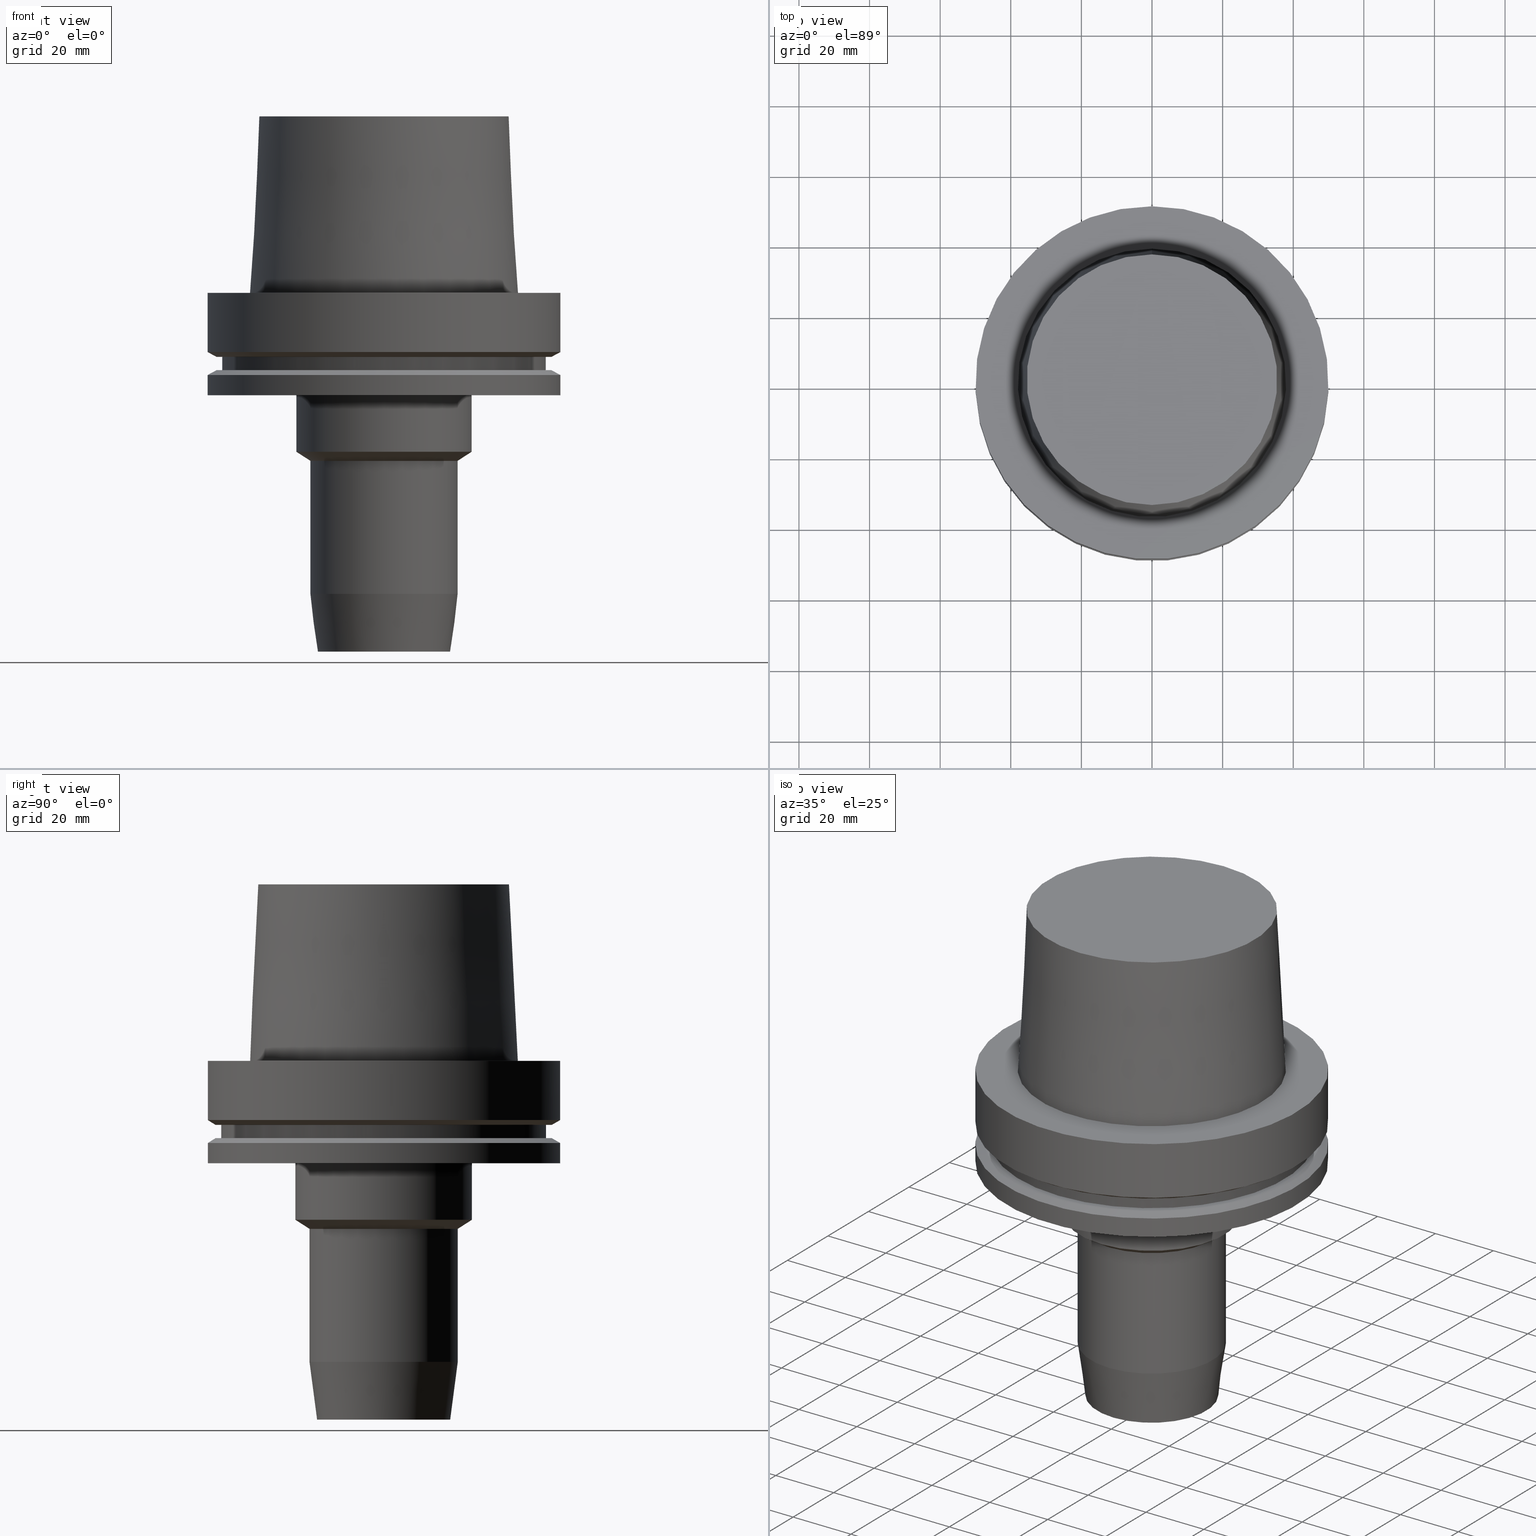
[diagram: canonical four-view strip — front | top / right | iso, engineering-drawing reading convention]
A machine part, canonical four-view strip (front | top / right | iso — engineering-drawing reading convention). The complete STEP part file that produces these views, byte-faithful:
ISO-10303-21;
HEADER;
FILE_DESCRIPTION((''),'1');
FILE_NAME('V:/90_\X2\53D65F9730C730FC30BF\X0\/00_\X2\6DE18DEF30C730FC30BF\X0\/ALL/HSK-BKUS\X2\52A05DE556F3\X0\_201801/HSK-A100-HDC/HSK-A100-HDC.750-4.stp','2018-02-01T05:30:38',(''),(''),'Spatial Interop R21 SP3','Kubotek KeyCreator 2011 V10.0.2 (22737)',' ');
FILE_SCHEMA(('automotive_design'));
ENDSEC;
DATA;
#1=MECHANICAL_DESIGN_GEOMETRIC_PRESENTATION_REPRESENTATION(' ',(#10,#11,#12,#13,#14,#15,#16,#17,#18,#19,#20,#21,#22,#23,#24,#25,#26,#27,#28,#29,#30,#31,#32,#33,#34,#35,#36,#37,#38,#39,#40,#41),#6);
#2=PRODUCT_DEFINITION_CONTEXT('',#42,'design');
#3=APPLICATION_PROTOCOL_DEFINITION('INTERNATIONAL STANDARD','automotive_design',1994,#42);
#4=PRODUCT_CATEGORY_RELATIONSHIP('NONE','NONE',#43,#44);
#5=SHAPE_DEFINITION_REPRESENTATION(#45,#46);
#6= (GEOMETRIC_REPRESENTATION_CONTEXT(3)GLOBAL_UNCERTAINTY_ASSIGNED_CONTEXT((#49))GLOBAL_UNIT_ASSIGNED_CONTEXT((#51,#52,#53))REPRESENTATION_CONTEXT('NONE','WORKSPACE'));
#10=STYLED_ITEM('',(#55,#56),#57);
#11=STYLED_ITEM('',(#58,#59),#60);
#12=STYLED_ITEM('',(#61,#62),#63);
#13=STYLED_ITEM('',(#64,#65),#66);
#14=STYLED_ITEM('',(#67),#68);
#15=STYLED_ITEM('',(#69,#70),#71);
#16=STYLED_ITEM('',(#72,#73),#74);
#17=STYLED_ITEM('',(#75,#76),#77);
#18=STYLED_ITEM('',(#78),#79);
#19=STYLED_ITEM('',(#80,#81),#82);
#20=STYLED_ITEM('',(#83,#84),#85);
#21=STYLED_ITEM('',(#86),#87);
#22=STYLED_ITEM('',(#88),#89);
#23=STYLED_ITEM('',(#90,#91),#92);
#24=STYLED_ITEM('',(#93),#94);
#25=STYLED_ITEM('',(#95),#96);
#26=STYLED_ITEM('',(#97,#98),#99);
#27=STYLED_ITEM('',(#100,#101),#102);
#28=STYLED_ITEM('',(#103),#104);
#29=STYLED_ITEM('',(#105),#106);
#30=STYLED_ITEM('',(#107,#108),#109);
#31=STYLED_ITEM('',(#110),#111);
#32=STYLED_ITEM('',(#112,#113),#114);
#33=STYLED_ITEM('',(#115,#116),#117);
#34=STYLED_ITEM('',(#118),#119);
#35=STYLED_ITEM('',(#120),#121);
#36=STYLED_ITEM('',(#122,#123),#124);
#37=STYLED_ITEM('',(#125),#126);
#38=STYLED_ITEM('',(#127),#128);
#39=STYLED_ITEM('',(#129),#130);
#40=STYLED_ITEM('',(#131),#132);
#41=STYLED_ITEM('',(#133,#134),#135);
#42=APPLICATION_CONTEXT(' ');
#43=PRODUCT_CATEGORY('part','NONE');
#44=PRODUCT_RELATED_PRODUCT_CATEGORY('detail',' ',(#136));
#45=PRODUCT_DEFINITION_SHAPE('NONE','NONE',#137);
#46=ADVANCED_BREP_SHAPE_REPRESENTATION('Unnamed[1]',(#74,#138),#6);
#49=UNCERTAINTY_MEASURE_WITH_UNIT(LENGTH_MEASURE(1.0E-006),#51,'','');
#51= (CONVERSION_BASED_UNIT('MILLIMETRE',#141)LENGTH_UNIT()NAMED_UNIT(#144));
#52= (NAMED_UNIT(#146)PLANE_ANGLE_UNIT()SI_UNIT($,.RADIAN.));
#53= (NAMED_UNIT(#146)SOLID_ANGLE_UNIT()SI_UNIT($,.STERADIAN.));
#55=PRESENTATION_STYLE_ASSIGNMENT((#152));
#56=PRESENTATION_STYLE_ASSIGNMENT((#153));
#57=ADVANCED_FACE('Unnamed[1]',(#154,#155),#156,.T.);
#58=PRESENTATION_STYLE_ASSIGNMENT((#157));
#59=PRESENTATION_STYLE_ASSIGNMENT((#158));
#60=ADVANCED_FACE('Unnamed[1]',(#159,#160),#161,.T.);
#61=PRESENTATION_STYLE_ASSIGNMENT((#162));
#62=PRESENTATION_STYLE_ASSIGNMENT((#163));
#63=ADVANCED_FACE('Unnamed[1]',(#164,#165),#166,.T.);
#64=PRESENTATION_STYLE_ASSIGNMENT((#167));
#65=PRESENTATION_STYLE_ASSIGNMENT((#168));
#66=ADVANCED_FACE('Unnamed[1]',(#169,#170),#171,.T.);
#67=PRESENTATION_STYLE_ASSIGNMENT((#172));
#68=EDGE_CURVE('Unnamed[1]',#173,#173,#174,.T.);
#69=PRESENTATION_STYLE_ASSIGNMENT((#175));
#70=PRESENTATION_STYLE_ASSIGNMENT((#176));
#71=ADVANCED_FACE('Unnamed[1]',(#177,#178),#179,.T.);
#72=PRESENTATION_STYLE_ASSIGNMENT((#180));
#73=PRESENTATION_STYLE_ASSIGNMENT((#181));
#74=MANIFOLD_SOLID_BREP('Unnamed[1]',#182);
#75=PRESENTATION_STYLE_ASSIGNMENT((#183));
#76=PRESENTATION_STYLE_ASSIGNMENT((#184));
#77=ADVANCED_FACE('Unnamed[1]',(#185,#186),#187,.T.);
#78=PRESENTATION_STYLE_ASSIGNMENT((#188));
#79=EDGE_CURVE('Unnamed[1]',#189,#189,#190,.T.);
#80=PRESENTATION_STYLE_ASSIGNMENT((#191));
#81=PRESENTATION_STYLE_ASSIGNMENT((#192));
#82=ADVANCED_FACE('Unnamed[1]',(#193,#194),#195,.T.);
#83=PRESENTATION_STYLE_ASSIGNMENT((#196));
#84=PRESENTATION_STYLE_ASSIGNMENT((#197));
#85=ADVANCED_FACE('Unnamed[1]',(#198,#199),#200,.T.);
#86=PRESENTATION_STYLE_ASSIGNMENT((#201));
#87=EDGE_CURVE('Unnamed[1]',#202,#202,#203,.T.);
#88=PRESENTATION_STYLE_ASSIGNMENT((#204));
#89=EDGE_CURVE('Unnamed[1]',#205,#205,#206,.T.);
#90=PRESENTATION_STYLE_ASSIGNMENT((#207));
#91=PRESENTATION_STYLE_ASSIGNMENT((#208));
#92=ADVANCED_FACE('Unnamed[1]',(#209),#210,.T.);
#93=PRESENTATION_STYLE_ASSIGNMENT((#211));
#94=EDGE_CURVE('Unnamed[1]',#212,#212,#213,.T.);
#95=PRESENTATION_STYLE_ASSIGNMENT((#214));
#96=EDGE_CURVE('Unnamed[1]',#215,#215,#216,.T.);
#97=PRESENTATION_STYLE_ASSIGNMENT((#217));
#98=PRESENTATION_STYLE_ASSIGNMENT((#218));
#99=ADVANCED_FACE('Unnamed[1]',(#219,#220),#221,.T.);
#100=PRESENTATION_STYLE_ASSIGNMENT((#222));
#101=PRESENTATION_STYLE_ASSIGNMENT((#223));
#102=ADVANCED_FACE('Unnamed[1]',(#224,#225),#226,.T.);
#103=PRESENTATION_STYLE_ASSIGNMENT((#227));
#104=EDGE_CURVE('Unnamed[1]',#228,#228,#229,.T.);
#105=PRESENTATION_STYLE_ASSIGNMENT((#230));
#106=EDGE_CURVE('Unnamed[1]',#231,#231,#232,.T.);
#107=PRESENTATION_STYLE_ASSIGNMENT((#233));
#108=PRESENTATION_STYLE_ASSIGNMENT((#234));
#109=ADVANCED_FACE('Unnamed[1]',(#235,#236),#237,.T.);
#110=PRESENTATION_STYLE_ASSIGNMENT((#238));
#111=EDGE_CURVE('Unnamed[1]',#239,#239,#240,.T.);
#112=PRESENTATION_STYLE_ASSIGNMENT((#241));
#113=PRESENTATION_STYLE_ASSIGNMENT((#242));
#114=ADVANCED_FACE('Unnamed[1]',(#243,#244),#245,.T.);
#115=PRESENTATION_STYLE_ASSIGNMENT((#246));
#116=PRESENTATION_STYLE_ASSIGNMENT((#247));
#117=ADVANCED_FACE('Unnamed[1]',(#248,#249),#250,.T.);
#118=PRESENTATION_STYLE_ASSIGNMENT((#251));
#119=EDGE_CURVE('Unnamed[1]',#252,#252,#253,.T.);
#120=PRESENTATION_STYLE_ASSIGNMENT((#254));
#121=EDGE_CURVE('Unnamed[1]',#255,#255,#256,.T.);
#122=PRESENTATION_STYLE_ASSIGNMENT((#257));
#123=PRESENTATION_STYLE_ASSIGNMENT((#258));
#124=ADVANCED_FACE('Unnamed[1]',(#259),#260,.T.);
#125=PRESENTATION_STYLE_ASSIGNMENT((#261));
#126=EDGE_CURVE('Unnamed[1]',#262,#262,#263,.T.);
#127=PRESENTATION_STYLE_ASSIGNMENT((#264));
#128=EDGE_CURVE('Unnamed[1]',#265,#265,#266,.T.);
#129=PRESENTATION_STYLE_ASSIGNMENT((#267));
#130=EDGE_CURVE('Unnamed[1]',#268,#268,#269,.T.);
#131=PRESENTATION_STYLE_ASSIGNMENT((#270));
#132=EDGE_CURVE('Unnamed[1]',#271,#271,#272,.T.);
#133=PRESENTATION_STYLE_ASSIGNMENT((#273));
#134=PRESENTATION_STYLE_ASSIGNMENT((#274));
#135=ADVANCED_FACE('Unnamed[1]',(#275,#276),#277,.T.);
#136=PRODUCT('Unnamed[1]','Unnamed[1]','PART-Unnamed[1]-DESC',(#278));
#137=PRODUCT_DEFINITION('NONE','NONE',#279,#2);
#138=AXIS2_PLACEMENT_3D('',#280,#281,#282);
#141=LENGTH_MEASURE_WITH_UNIT(LENGTH_MEASURE(1.0),#283);
#144=DIMENSIONAL_EXPONENTS(1.0,0.0,0.0,0.0,0.0,0.0,0.0);
#146=DIMENSIONAL_EXPONENTS(0.0,0.0,0.0,0.0,0.0,0.0,0.0);
#152=SURFACE_STYLE_USAGE(.BOTH.,#284);
#153=CURVE_STYLE('',#285,POSITIVE_LENGTH_MEASURE(1000.0),#286);
#154=FACE_BOUND('',#287,.T.);
#155=FACE_BOUND('',#288,.T.);
#156=CONICAL_SURFACE('',#289,36.7500000007484,0.0499583956894843);
#157=SURFACE_STYLE_USAGE(.BOTH.,#290);
#158=CURVE_STYLE('',#291,POSITIVE_LENGTH_MEASURE(1000.0),#292);
#159=FACE_BOUND('',#293,.T.);
#160=FACE_BOUND('',#294,.T.);
#161=CONICAL_SURFACE('',#295,48.81129763,1.04719755328238);
#162=SURFACE_STYLE_USAGE(.BOTH.,#296);
#163=CURVE_STYLE('',#297,POSITIVE_LENGTH_MEASURE(1000.0),#298);
#164=FACE_BOUND('',#299,.T.);
#165=FACE_OUTER_BOUND('',#300,.T.);
#166=PLANE('',#301);
#167=SURFACE_STYLE_USAGE(.BOTH.,#302);
#168=CURVE_STYLE('',#303,POSITIVE_LENGTH_MEASURE(1000.0),#304);
#169=FACE_BOUND('',#305,.T.);
#170=FACE_OUTER_BOUND('',#306,.T.);
#171=PLANE('',#307);
#172=CURVE_STYLE('',#308,POSITIVE_LENGTH_MEASURE(1000.0),#309);
#173=VERTEX_POINT('',#310);
#174=CIRCLE('',#311,50.0);
#175=SURFACE_STYLE_USAGE(.BOTH.,#312);
#176=CURVE_STYLE('',#313,POSITIVE_LENGTH_MEASURE(1000.0),#314);
#177=FACE_OUTER_BOUND('',#315,.T.);
#178=FACE_BOUND('',#316,.T.);
#179=PLANE('',#317);
#180=SURFACE_STYLE_USAGE(.BOTH.,#318);
#181=CURVE_STYLE('',#319,POSITIVE_LENGTH_MEASURE(1000.0),#320);
#182=CLOSED_SHELL('',(#124,#57,#109,#82,#60,#63,#102,#71,#114,#85,#66,#99,#135,#77,#117,#92));
#183=SURFACE_STYLE_USAGE(.BOTH.,#321);
#184=CURVE_STYLE('',#322,POSITIVE_LENGTH_MEASURE(1000.0),#323);
#185=FACE_BOUND('',#324,.T.);
#186=FACE_BOUND('',#325,.T.);
#187=CYLINDRICAL_SURFACE('',#326,20.9999999999996);
#188=CURVE_STYLE('',#327,POSITIVE_LENGTH_MEASURE(1000.0),#328);
#189=VERTEX_POINT('',#329);
#190=CIRCLE('',#330,50.0);
#191=SURFACE_STYLE_USAGE(.BOTH.,#331);
#192=CURVE_STYLE('',#332,POSITIVE_LENGTH_MEASURE(1000.0),#333);
#193=FACE_BOUND('',#334,.T.);
#194=FACE_BOUND('',#335,.T.);
#195=CYLINDRICAL_SURFACE('',#336,50.0);
#196=SURFACE_STYLE_USAGE(.BOTH.,#337);
#197=CURVE_STYLE('',#338,POSITIVE_LENGTH_MEASURE(1000.0),#339);
#198=FACE_BOUND('',#340,.T.);
#199=FACE_BOUND('',#341,.T.);
#200=CYLINDRICAL_SURFACE('',#342,50.0);
#201=CURVE_STYLE('',#343,POSITIVE_LENGTH_MEASURE(1000.0),#344);
#202=VERTEX_POINT('',#345);
#203=CIRCLE('',#346,18.8468234019571);
#204=CURVE_STYLE('',#347,POSITIVE_LENGTH_MEASURE(1000.0),#348);
#205=VERTEX_POINT('',#349);
#206=CIRCLE('',#350,21.0000000000001);
#207=SURFACE_STYLE_USAGE(.BOTH.,#351);
#208=CURVE_STYLE('',#352,POSITIVE_LENGTH_MEASURE(1000.0),#353);
#209=FACE_OUTER_BOUND('',#354,.T.);
#210=PLANE('',#355);
#211=CURVE_STYLE('',#356,POSITIVE_LENGTH_MEASURE(1000.0),#357);
#212=VERTEX_POINT('',#358);
#213=CIRCLE('',#359,46.0);
#214=CURVE_STYLE('',#360,POSITIVE_LENGTH_MEASURE(1000.0),#361);
#215=VERTEX_POINT('',#362);
#216=CIRCLE('',#363,35.5000000015618);
#217=SURFACE_STYLE_USAGE(.BOTH.,#364);
#218=CURVE_STYLE('',#365,POSITIVE_LENGTH_MEASURE(1000.0),#366);
#219=FACE_BOUND('',#367,.T.);
#220=FACE_BOUND('',#368,.T.);
#221=CYLINDRICAL_SURFACE('',#369,25.0000000000002);
#222=SURFACE_STYLE_USAGE(.BOTH.,#370);
#223=CURVE_STYLE('',#371,POSITIVE_LENGTH_MEASURE(1000.0),#372);
#224=FACE_BOUND('',#373,.T.);
#225=FACE_BOUND('',#374,.T.);
#226=CYLINDRICAL_SURFACE('',#375,46.0);
#227=CURVE_STYLE('',#376,POSITIVE_LENGTH_MEASURE(1000.0),#377);
#228=VERTEX_POINT('',#378);
#229=CIRCLE('',#379,46.0);
#230=CURVE_STYLE('',#380,POSITIVE_LENGTH_MEASURE(1000.0),#381);
#231=VERTEX_POINT('',#382);
#232=CIRCLE('',#383,50.0);
#233=SURFACE_STYLE_USAGE(.BOTH.,#384);
#234=CURVE_STYLE('',#385,POSITIVE_LENGTH_MEASURE(1000.0),#386);
#235=FACE_OUTER_BOUND('',#387,.T.);
#236=FACE_BOUND('',#388,.T.);
#237=PLANE('',#389);
#238=CURVE_STYLE('',#390,POSITIVE_LENGTH_MEASURE(1000.0),#391);
#239=VERTEX_POINT('',#392);
#240=CIRCLE('',#393,25.0000000000002);
#241=SURFACE_STYLE_USAGE(.BOTH.,#394);
#242=CURVE_STYLE('',#395,POSITIVE_LENGTH_MEASURE(1000.0),#396);
#243=FACE_BOUND('',#397,.T.);
#244=FACE_BOUND('',#398,.T.);
#245=CONICAL_SURFACE('',#399,48.81129763,1.04719755328238);
#246=SURFACE_STYLE_USAGE(.BOTH.,#400);
#247=CURVE_STYLE('',#401,POSITIVE_LENGTH_MEASURE(1000.0),#402);
#248=FACE_BOUND('',#403,.T.);
#249=FACE_BOUND('',#404,.T.);
#250=CONICAL_SURFACE('',#405,19.9234117009781,0.13089969389958);
#251=CURVE_STYLE('',#406,POSITIVE_LENGTH_MEASURE(1000.0),#407);
#252=VERTEX_POINT('',#408);
#253=CIRCLE('',#409,47.62259526);
#254=CURVE_STYLE('',#410,POSITIVE_LENGTH_MEASURE(1000.0),#411);
#255=VERTEX_POINT('',#412);
#256=CIRCLE('',#413,50.0);
#257=SURFACE_STYLE_USAGE(.BOTH.,#414);
#258=CURVE_STYLE('',#415,POSITIVE_LENGTH_MEASURE(1000.0),#416);
#259=FACE_OUTER_BOUND('',#417,.T.);
#260=PLANE('',#418);
#261=CURVE_STYLE('',#419,POSITIVE_LENGTH_MEASURE(1000.0),#420);
#262=VERTEX_POINT('',#421);
#263=CIRCLE('',#422,37.9999999999349);
#264=CURVE_STYLE('',#423,POSITIVE_LENGTH_MEASURE(1000.0),#424);
#265=VERTEX_POINT('',#425);
#266=CIRCLE('',#426,20.9999999999991);
#267=CURVE_STYLE('',#427,POSITIVE_LENGTH_MEASURE(1000.0),#428);
#268=VERTEX_POINT('',#429);
#269=CIRCLE('',#430,47.62259526);
#270=CURVE_STYLE('',#431,POSITIVE_LENGTH_MEASURE(1000.0),#432);
#271=VERTEX_POINT('',#433);
#272=CIRCLE('',#434,25.0000000000002);
#273=SURFACE_STYLE_USAGE(.BOTH.,#435);
#274=CURVE_STYLE('',#436,POSITIVE_LENGTH_MEASURE(1000.0),#437);
#275=FACE_BOUND('',#438,.T.);
#276=FACE_BOUND('',#439,.T.);
#277=CONICAL_SURFACE('',#440,23.0000000000001,1.00120778468584);
#278=PRODUCT_CONTEXT('',#42,'mechanical');
#279=PRODUCT_DEFINITION_FORMATION_WITH_SPECIFIED_SOURCE(' ','NONE',#136,.NOT_KNOWN.);
#280=CARTESIAN_POINT('',(0.0,0.0,0.0));
#281=DIRECTION('',(0.0,0.0,1.0));
#282=DIRECTION('',(1.0,0.0,0.0));
#283= (NAMED_UNIT(#144)LENGTH_UNIT()SI_UNIT(.MILLI.,.METRE.));
#284=SURFACE_SIDE_STYLE('',(#442));
#285=DRAUGHTING_PRE_DEFINED_CURVE_FONT('continuous');
#286=COLOUR_RGB('',0.0,1.0,0.0);
#287=EDGE_LOOP('',(#443));
#288=EDGE_LOOP('',(#444));
#289=AXIS2_PLACEMENT_3D('',#445,#446,#447);
#290=SURFACE_SIDE_STYLE('',(#448));
#291=DRAUGHTING_PRE_DEFINED_CURVE_FONT('continuous');
#292=COLOUR_RGB('',0.0,1.0,0.0);
#293=EDGE_LOOP('',(#449));
#294=EDGE_LOOP('',(#450));
#295=AXIS2_PLACEMENT_3D('',#451,#452,#453);
#296=SURFACE_SIDE_STYLE('',(#454));
#297=DRAUGHTING_PRE_DEFINED_CURVE_FONT('continuous');
#298=COLOUR_RGB('',0.0,1.0,0.0);
#299=EDGE_LOOP('',(#455));
#300=EDGE_LOOP('',(#456));
#301=AXIS2_PLACEMENT_3D('',#457,#458,#459);
#302=SURFACE_SIDE_STYLE('',(#460));
#303=DRAUGHTING_PRE_DEFINED_CURVE_FONT('continuous');
#304=COLOUR_RGB('',0.0,1.0,0.0);
#305=EDGE_LOOP('',(#461));
#306=EDGE_LOOP('',(#462));
#307=AXIS2_PLACEMENT_3D('',#463,#464,#465);
#308=DRAUGHTING_PRE_DEFINED_CURVE_FONT('continuous');
#309=COLOUR_RGB('',0.0,1.0,0.0);
#310=CARTESIAN_POINT('',(-1.81547968506605E-031,50.0,-9.76766004263236E-016));
#311=AXIS2_PLACEMENT_3D('',#466,#467,#468);
#312=SURFACE_SIDE_STYLE('',(#469));
#313=DRAUGHTING_PRE_DEFINED_CURVE_FONT('continuous');
#314=COLOUR_RGB('',0.0,1.0,0.0);
#315=EDGE_LOOP('',(#470));
#316=EDGE_LOOP('',(#471));
#317=AXIS2_PLACEMENT_3D('',#472,#473,#474);
#318=SURFACE_SIDE_STYLE('',(#475));
#319=DRAUGHTING_PRE_DEFINED_CURVE_FONT('continuous');
#320=COLOUR_RGB('',0.0,1.0,0.0);
#321=SURFACE_SIDE_STYLE('',(#476));
#322=DRAUGHTING_PRE_DEFINED_CURVE_FONT('continuous');
#323=COLOUR_RGB('',0.0,1.0,0.0);
#324=EDGE_LOOP('',(#477));
#325=EDGE_LOOP('',(#478));
#326=AXIS2_PLACEMENT_3D('',#479,#480,#481);
#327=DRAUGHTING_PRE_DEFINED_CURVE_FONT('continuous');
#328=COLOUR_RGB('',0.0,1.0,0.0);
#329=CARTESIAN_POINT('',(1.42350465615161E-015,50.0,-23.24759526));
#330=AXIS2_PLACEMENT_3D('',#482,#483,#484);
#331=SURFACE_SIDE_STYLE('',(#485));
#332=DRAUGHTING_PRE_DEFINED_CURVE_FONT('continuous');
#333=COLOUR_RGB('',0.0,1.0,0.0);
#334=EDGE_LOOP('',(#486));
#335=EDGE_LOOP('',(#487));
#336=AXIS2_PLACEMENT_3D('',#488,#489,#490);
#337=SURFACE_SIDE_STYLE('',(#491));
#338=DRAUGHTING_PRE_DEFINED_CURVE_FONT('continuous');
#339=COLOUR_RGB('',0.0,1.0,0.0);
#340=EDGE_LOOP('',(#492));
#341=EDGE_LOOP('',(#493));
#342=AXIS2_PLACEMENT_3D('',#494,#495,#496);
#343=DRAUGHTING_PRE_DEFINED_CURVE_FONT('continuous');
#344=COLOUR_RGB('',0.0,1.0,0.0);
#345=CARTESIAN_POINT('',(6.22120573966855E-015,18.8468234019571,-101.6));
#346=AXIS2_PLACEMENT_3D('',#497,#498,#499);
#347=DRAUGHTING_PRE_DEFINED_CURVE_FONT('continuous');
#348=COLOUR_RGB('',0.0,1.0,0.0);
#349=CARTESIAN_POINT('',(2.91230517073421E-015,21.0000000000001,-47.5615528128088));
#350=AXIS2_PLACEMENT_3D('',#500,#501,#502);
#351=SURFACE_SIDE_STYLE('',(#503));
#352=DRAUGHTING_PRE_DEFINED_CURVE_FONT('continuous');
#353=COLOUR_RGB('',0.0,1.0,0.0);
#354=EDGE_LOOP('',(#504));
#355=AXIS2_PLACEMENT_3D('',#505,#506,#507);
#356=DRAUGHTING_PRE_DEFINED_CURVE_FONT('continuous');
#357=COLOUR_RGB('',0.0,1.0,0.0);
#358=CARTESIAN_POINT('',(1.10983616172729E-015,46.0,-18.125));
#359=AXIS2_PLACEMENT_3D('',#508,#509,#510);
#360=DRAUGHTING_PRE_DEFINED_CURVE_FONT('continuous');
#361=COLOUR_RGB('',0.0,1.0,0.0);
#362=CARTESIAN_POINT('',(-3.06161699786838E-015,35.5000000015618,50.0));
#363=AXIS2_PLACEMENT_3D('',#511,#512,#513);
#364=SURFACE_SIDE_STYLE('',(#514));
#365=DRAUGHTING_PRE_DEFINED_CURVE_FONT('continuous');
#366=COLOUR_RGB('',0.0,1.0,0.0);
#367=EDGE_LOOP('',(#515));
#368=EDGE_LOOP('',(#516));
#369=AXIS2_PLACEMENT_3D('',#517,#518,#519);
#370=SURFACE_SIDE_STYLE('',(#520));
#371=DRAUGHTING_PRE_DEFINED_CURVE_FONT('continuous');
#372=COLOUR_RGB('',0.0,1.0,0.0);
#373=EDGE_LOOP('',(#521));
#374=EDGE_LOOP('',(#522));
#375=AXIS2_PLACEMENT_3D('',#523,#524,#525);
#376=DRAUGHTING_PRE_DEFINED_CURVE_FONT('continuous');
#377=COLOUR_RGB('',0.0,1.0,0.0);
#378=CARTESIAN_POINT('',(1.33945743656742E-015,46.0,-21.875));
#379=AXIS2_PLACEMENT_3D('',#526,#527,#528);
#380=DRAUGHTING_PRE_DEFINED_CURVE_FONT('continuous');
#381=COLOUR_RGB('',0.0,1.0,0.0);
#382=CARTESIAN_POINT('',(1.0257889421431E-015,50.0,-16.75240474));
#383=AXIS2_PLACEMENT_3D('',#529,#530,#531);
#384=SURFACE_SIDE_STYLE('',(#532));
#385=DRAUGHTING_PRE_DEFINED_CURVE_FONT('continuous');
#386=COLOUR_RGB('',0.0,1.0,0.0);
#387=EDGE_LOOP('',(#533));
#388=EDGE_LOOP('',(#534));
#389=AXIS2_PLACEMENT_3D('',#535,#536,#537);
#390=DRAUGHTING_PRE_DEFINED_CURVE_FONT('continuous');
#391=COLOUR_RGB('',0.0,1.0,0.0);
#392=CARTESIAN_POINT('',(2.75545529808154E-015,25.0000000000002,-45.0));
#393=AXIS2_PLACEMENT_3D('',#538,#539,#540);
#394=SURFACE_SIDE_STYLE('',(#541));
#395=DRAUGHTING_PRE_DEFINED_CURVE_FONT('continuous');
#396=COLOUR_RGB('',0.0,1.0,0.0);
#397=EDGE_LOOP('',(#542));
#398=EDGE_LOOP('',(#543));
#399=AXIS2_PLACEMENT_3D('',#544,#545,#546);
#400=SURFACE_SIDE_STYLE('',(#547));
#401=DRAUGHTING_PRE_DEFINED_CURVE_FONT('continuous');
#402=COLOUR_RGB('',0.0,1.0,0.0);
#403=EDGE_LOOP('',(#548));
#404=EDGE_LOOP('',(#549));
#405=AXIS2_PLACEMENT_3D('',#550,#551,#552);
#406=DRAUGHTING_PRE_DEFINED_CURVE_FONT('continuous');
#407=COLOUR_RGB('',0.0,1.0,0.0);
#408=CARTESIAN_POINT('',(1.33945743656742E-015,47.62259526,-21.875));
#409=AXIS2_PLACEMENT_3D('',#553,#554,#555);
#410=DRAUGHTING_PRE_DEFINED_CURVE_FONT('continuous');
#411=COLOUR_RGB('',0.0,1.0,0.0);
#412=CARTESIAN_POINT('',(1.77573785876366E-015,50.0,-29.0));
#413=AXIS2_PLACEMENT_3D('',#556,#557,#558);
#414=SURFACE_SIDE_STYLE('',(#559));
#415=DRAUGHTING_PRE_DEFINED_CURVE_FONT('continuous');
#416=COLOUR_RGB('',0.0,1.0,0.0);
#417=EDGE_LOOP('',(#560));
#418=AXIS2_PLACEMENT_3D('',#561,#562,#563);
#419=DRAUGHTING_PRE_DEFINED_CURVE_FONT('continuous');
#420=COLOUR_RGB('',0.0,1.0,0.0);
#421=CARTESIAN_POINT('',(-3.3636548776863E-032,37.9999999999349,-2.44634216324803E-015));
#422=AXIS2_PLACEMENT_3D('',#564,#565,#566);
#423=DRAUGHTING_PRE_DEFINED_CURVE_FONT('continuous');
#424=COLOUR_RGB('',0.0,1.0,0.0);
#425=CARTESIAN_POINT('',(5.21975081966579E-015,20.9999999999991,-85.2449999999997));
#426=AXIS2_PLACEMENT_3D('',#567,#568,#569);
#427=DRAUGHTING_PRE_DEFINED_CURVE_FONT('continuous');
#428=COLOUR_RGB('',0.0,1.0,0.0);
#429=CARTESIAN_POINT('',(1.10983616172729E-015,47.62259526,-18.125));
#430=AXIS2_PLACEMENT_3D('',#570,#571,#572);
#431=DRAUGHTING_PRE_DEFINED_CURVE_FONT('continuous');
#432=COLOUR_RGB('',0.0,1.0,0.0);
#433=CARTESIAN_POINT('',(1.77573785876366E-015,25.0000000000002,-29.0));
#434=AXIS2_PLACEMENT_3D('',#573,#574,#575);
#435=SURFACE_SIDE_STYLE('',(#576));
#436=DRAUGHTING_PRE_DEFINED_CURVE_FONT('continuous');
#437=COLOUR_RGB('',0.0,1.0,0.0);
#438=EDGE_LOOP('',(#577));
#439=EDGE_LOOP('',(#578));
#440=AXIS2_PLACEMENT_3D('',#579,#580,#581);
#442=SURFACE_STYLE_FILL_AREA(#582);
#443=ORIENTED_EDGE('',*,*,#126,.F.);
#444=ORIENTED_EDGE('',*,*,#96,.T.);
#445=CARTESIAN_POINT('',(-1.53080849893419E-015,-3.06161699786838E-015,25.0));
#446=DIRECTION('',(6.12323399573676E-017,1.22464679914735E-016,-1.0));
#447=DIRECTION('',(-1.23259516440783E-032,1.0,1.22464679914735E-016));
#448=SURFACE_STYLE_FILL_AREA(#583);
#449=ORIENTED_EDGE('',*,*,#130,.F.);
#450=ORIENTED_EDGE('',*,*,#106,.T.);
#451=CARTESIAN_POINT('',(1.06781255193519E-015,2.13562510387038E-015,-17.43870237));
#452=DIRECTION('',(-6.12323399573677E-017,-1.22464679914735E-016,1.0));
#453=DIRECTION('',(-1.23259516440783E-032,1.0,1.22464679914735E-016));
#454=SURFACE_STYLE_FILL_AREA(#584);
#455=ORIENTED_EDGE('',*,*,#94,.F.);
#456=ORIENTED_EDGE('',*,*,#130,.T.);
#457=CARTESIAN_POINT('',(1.10983616172729E-015,46.81129763,-18.125));
#458=DIRECTION('',(6.12323399573677E-017,1.22464679914735E-016,-1.0));
#459=DIRECTION('',(-1.23259516440783E-032,1.0,1.22464679914735E-016));
#460=SURFACE_STYLE_FILL_AREA(#585);
#461=ORIENTED_EDGE('',*,*,#132,.F.);
#462=ORIENTED_EDGE('',*,*,#121,.T.);
#463=CARTESIAN_POINT('',(1.77573785876366E-015,37.5000000000001,-29.0));
#464=DIRECTION('',(6.12323399573677E-017,1.22464679914735E-016,-1.0));
#465=DIRECTION('',(-1.23259516440783E-032,1.0,1.22464679914735E-016));
#466=CARTESIAN_POINT('',(0.0,0.0,0.0));
#467=DIRECTION('',(6.12323399573677E-017,1.22464679914735E-016,-1.0));
#468=DIRECTION('',(-1.23259516440783E-032,1.0,1.22464679914735E-016));
#469=SURFACE_STYLE_FILL_AREA(#586);
#470=ORIENTED_EDGE('',*,*,#119,.F.);
#471=ORIENTED_EDGE('',*,*,#104,.T.);
#472=CARTESIAN_POINT('',(1.33945743656742E-015,46.81129763,-21.875));
#473=DIRECTION('',(-6.12323399573677E-017,-1.22464679914735E-016,1.0));
#474=DIRECTION('',(1.23259516440783E-032,-1.0,-1.22464679914735E-016));
#475=SURFACE_STYLE_FILL_AREA(#587);
#476=SURFACE_STYLE_FILL_AREA(#588);
#477=ORIENTED_EDGE('',*,*,#128,.F.);
#478=ORIENTED_EDGE('',*,*,#89,.T.);
#479=CARTESIAN_POINT('',(4.0660279952E-015,8.13205599039999E-015,-66.4032764064043));
#480=DIRECTION('',(6.12323399573677E-017,1.22464679914735E-016,-1.0));
#481=DIRECTION('',(-1.23259516440783E-032,1.0,1.22464679914735E-016));
#482=CARTESIAN_POINT('',(1.42350465615161E-015,2.84700931230322E-015,-23.24759526));
#483=DIRECTION('',(6.12323399573677E-017,1.22464679914735E-016,-1.0));
#484=DIRECTION('',(-1.23259516440783E-032,1.0,1.22464679914735E-016));
#485=SURFACE_STYLE_FILL_AREA(#589);
#486=ORIENTED_EDGE('',*,*,#106,.F.);
#487=ORIENTED_EDGE('',*,*,#68,.T.);
#488=CARTESIAN_POINT('',(5.12894471071548E-016,1.0257889421431E-015,-8.37620236999999));
#489=DIRECTION('',(6.12323399573677E-017,1.22464679914735E-016,-1.0));
#490=DIRECTION('',(-1.23259516440783E-032,1.0,1.22464679914735E-016));
#491=SURFACE_STYLE_FILL_AREA(#590);
#492=ORIENTED_EDGE('',*,*,#121,.F.);
#493=ORIENTED_EDGE('',*,*,#79,.T.);
#494=CARTESIAN_POINT('',(1.59962125745764E-015,3.19924251491527E-015,-26.12379763));
#495=DIRECTION('',(6.12323399573677E-017,1.22464679914735E-016,-1.0));
#496=DIRECTION('',(-1.23259516440783E-032,1.0,1.22464679914735E-016));
#497=CARTESIAN_POINT('',(6.22120573966855E-015,1.24424114793371E-014,-101.6));
#498=DIRECTION('',(6.12323399573677E-017,1.22464679914735E-016,-1.0));
#499=DIRECTION('',(-1.23259516440783E-032,1.0,1.22464679914735E-016));
#500=CARTESIAN_POINT('',(2.91230517073421E-015,5.82461034146841E-015,-47.5615528128088));
#501=DIRECTION('',(6.12323399573677E-017,1.22464679914735E-016,-1.0));
#502=DIRECTION('',(-1.23259516440783E-032,1.0,1.22464679914735E-016));
#503=SURFACE_STYLE_FILL_AREA(#591);
#504=ORIENTED_EDGE('',*,*,#87,.T.);
#505=CARTESIAN_POINT('',(6.22120573966855E-015,9.42341170097856,-101.6));
#506=DIRECTION('',(6.12323399573677E-017,1.22464679914735E-016,-1.0));
#507=DIRECTION('',(-1.23259516440783E-032,1.0,1.22464679914735E-016));
#508=CARTESIAN_POINT('',(1.10983616172729E-015,2.21967232345458E-015,-18.125));
#509=DIRECTION('',(6.12323399573677E-017,1.22464679914735E-016,-1.0));
#510=DIRECTION('',(-1.23259516440783E-032,1.0,1.22464679914735E-016));
#511=CARTESIAN_POINT('',(-3.06161699786838E-015,-6.12323399573676E-015,50.0));
#512=DIRECTION('',(6.12323399573677E-017,1.22464679914735E-016,-1.0));
#513=DIRECTION('',(-1.23259516440783E-032,1.0,1.22464679914735E-016));
#514=SURFACE_STYLE_FILL_AREA(#592);
#515=ORIENTED_EDGE('',*,*,#111,.F.);
#516=ORIENTED_EDGE('',*,*,#132,.T.);
#517=CARTESIAN_POINT('',(2.2655965784226E-015,4.5311931568452E-015,-37.0));
#518=DIRECTION('',(6.12323399573677E-017,1.22464679914735E-016,-1.0));
#519=DIRECTION('',(-1.23259516440783E-032,1.0,1.22464679914735E-016));
#520=SURFACE_STYLE_FILL_AREA(#593);
#521=ORIENTED_EDGE('',*,*,#104,.F.);
#522=ORIENTED_EDGE('',*,*,#94,.T.);
#523=CARTESIAN_POINT('',(1.22464679914735E-015,2.44929359829471E-015,-20.0));
#524=DIRECTION('',(6.12323399573677E-017,1.22464679914735E-016,-1.0));
#525=DIRECTION('',(-1.23259516440783E-032,1.0,1.22464679914735E-016));
#526=CARTESIAN_POINT('',(1.33945743656742E-015,2.67891487313484E-015,-21.875));
#527=DIRECTION('',(6.12323399573677E-017,1.22464679914735E-016,-1.0));
#528=DIRECTION('',(-1.23259516440783E-032,1.0,1.22464679914735E-016));
#529=CARTESIAN_POINT('',(1.0257889421431E-015,2.05157788428619E-015,-16.75240474));
#530=DIRECTION('',(6.12323399573677E-017,1.22464679914735E-016,-1.0));
#531=DIRECTION('',(-1.23259516440783E-032,1.0,1.22464679914735E-016));
#532=SURFACE_STYLE_FILL_AREA(#594);
#533=ORIENTED_EDGE('',*,*,#68,.F.);
#534=ORIENTED_EDGE('',*,*,#126,.T.);
#535=CARTESIAN_POINT('',(-1.07592258641734E-031,43.9999999999675,-1.71155408375563E-015));
#536=DIRECTION('',(-6.12323399573677E-017,-1.22464679914735E-016,1.0));
#537=DIRECTION('',(1.23259516440783E-032,-1.0,-1.22464679914735E-016));
#538=CARTESIAN_POINT('',(2.75545529808154E-015,5.51091059616308E-015,-45.0));
#539=DIRECTION('',(6.12323399573677E-017,1.22464679914735E-016,-1.0));
#540=DIRECTION('',(-1.23259516440783E-032,1.0,1.22464679914735E-016));
#541=SURFACE_STYLE_FILL_AREA(#595);
#542=ORIENTED_EDGE('',*,*,#79,.F.);
#543=ORIENTED_EDGE('',*,*,#119,.T.);
#544=CARTESIAN_POINT('',(1.38148104635951E-015,2.76296209271903E-015,-22.56129763));
#545=DIRECTION('',(6.12323399573677E-017,1.22464679914735E-016,-1.0));
#546=DIRECTION('',(-1.23259516440783E-032,1.0,1.22464679914735E-016));
#547=SURFACE_STYLE_FILL_AREA(#596);
#548=ORIENTED_EDGE('',*,*,#87,.F.);
#549=ORIENTED_EDGE('',*,*,#128,.T.);
#550=CARTESIAN_POINT('',(5.72047827966717E-015,1.14409565593343E-014,-93.4224999999999));
#551=DIRECTION('',(-6.12323399573677E-017,-1.22464679914735E-016,1.0));
#552=DIRECTION('',(-1.23259516440783E-032,1.0,1.22464679914735E-016));
#553=CARTESIAN_POINT('',(1.33945743656742E-015,2.67891487313484E-015,-21.875));
#554=DIRECTION('',(6.12323399573676E-017,1.22464679914735E-016,-1.0));
#555=DIRECTION('',(-1.23259516440783E-032,1.0,1.22464679914735E-016));
#556=CARTESIAN_POINT('',(1.77573785876366E-015,3.55147571752733E-015,-29.0));
#557=DIRECTION('',(6.12323399573677E-017,1.22464679914735E-016,-1.0));
#558=DIRECTION('',(-1.23259516440783E-032,1.0,1.22464679914735E-016));
#559=SURFACE_STYLE_FILL_AREA(#597);
#560=ORIENTED_EDGE('',*,*,#96,.F.);
#561=CARTESIAN_POINT('',(-3.06161699786838E-015,17.7500000007809,50.0));
#562=DIRECTION('',(-6.12323399573677E-017,-1.22464679914735E-016,1.0));
#563=DIRECTION('',(1.23259516440783E-032,-1.0,-1.22464679914735E-016));
#564=CARTESIAN_POINT('',(0.0,0.0,0.0));
#565=DIRECTION('',(6.12323399573677E-017,1.22464679914735E-016,-1.0));
#566=DIRECTION('',(-1.23259516440783E-032,1.0,1.22464679914735E-016));
#567=CARTESIAN_POINT('',(5.21975081966579E-015,1.04395016393316E-014,-85.2449999999997));
#568=DIRECTION('',(6.12323399573677E-017,1.22464679914735E-016,-1.0));
#569=DIRECTION('',(-1.23259516440783E-032,1.0,1.22464679914735E-016));
#570=CARTESIAN_POINT('',(1.10983616172729E-015,2.21967232345458E-015,-18.125));
#571=DIRECTION('',(6.12323399573676E-017,1.22464679914735E-016,-1.0));
#572=DIRECTION('',(-1.23259516440783E-032,1.0,1.22464679914735E-016));
#573=CARTESIAN_POINT('',(1.77573785876366E-015,3.55147571752733E-015,-29.0));
#574=DIRECTION('',(6.12323399573677E-017,1.22464679914735E-016,-1.0));
#575=DIRECTION('',(-1.23259516440783E-032,1.0,1.22464679914735E-016));
#576=SURFACE_STYLE_FILL_AREA(#598);
#577=ORIENTED_EDGE('',*,*,#89,.F.);
#578=ORIENTED_EDGE('',*,*,#111,.T.);
#579=CARTESIAN_POINT('',(2.83388023440787E-015,5.66776046881575E-015,-46.2807764064044));
#580=DIRECTION('',(-6.12323399573677E-017,-1.22464679914735E-016,1.0));
#581=DIRECTION('',(-1.23259516440783E-032,1.0,1.22464679914735E-016));
#582=FILL_AREA_STYLE('',(#599));
#583=FILL_AREA_STYLE('',(#600));
#584=FILL_AREA_STYLE('',(#601));
#585=FILL_AREA_STYLE('',(#602));
#586=FILL_AREA_STYLE('',(#603));
#587=FILL_AREA_STYLE('',(#604));
#588=FILL_AREA_STYLE('',(#605));
#589=FILL_AREA_STYLE('',(#606));
#590=FILL_AREA_STYLE('',(#607));
#591=FILL_AREA_STYLE('',(#608));
#592=FILL_AREA_STYLE('',(#609));
#593=FILL_AREA_STYLE('',(#610));
#594=FILL_AREA_STYLE('',(#611));
#595=FILL_AREA_STYLE('',(#612));
#596=FILL_AREA_STYLE('',(#613));
#597=FILL_AREA_STYLE('',(#614));
#598=FILL_AREA_STYLE('',(#615));
#599=FILL_AREA_STYLE_COLOUR('',#616);
#600=FILL_AREA_STYLE_COLOUR('',#617);
#601=FILL_AREA_STYLE_COLOUR('',#618);
#602=FILL_AREA_STYLE_COLOUR('',#619);
#603=FILL_AREA_STYLE_COLOUR('',#620);
#604=FILL_AREA_STYLE_COLOUR('',#621);
#605=FILL_AREA_STYLE_COLOUR('',#622);
#606=FILL_AREA_STYLE_COLOUR('',#623);
#607=FILL_AREA_STYLE_COLOUR('',#624);
#608=FILL_AREA_STYLE_COLOUR('',#625);
#609=FILL_AREA_STYLE_COLOUR('',#626);
#610=FILL_AREA_STYLE_COLOUR('',#627);
#611=FILL_AREA_STYLE_COLOUR('',#628);
#612=FILL_AREA_STYLE_COLOUR('',#629);
#613=FILL_AREA_STYLE_COLOUR('',#630);
#614=FILL_AREA_STYLE_COLOUR('',#631);
#615=FILL_AREA_STYLE_COLOUR('',#632);
#616=COLOUR_RGB('',0.0,1.0,0.0);
#617=COLOUR_RGB('',0.0,1.0,0.0);
#618=COLOUR_RGB('',0.0,1.0,0.0);
#619=COLOUR_RGB('',0.0,1.0,0.0);
#620=COLOUR_RGB('',0.0,1.0,0.0);
#621=COLOUR_RGB('',0.0,1.0,0.0);
#622=COLOUR_RGB('',0.0,1.0,0.0);
#623=COLOUR_RGB('',0.0,1.0,0.0);
#624=COLOUR_RGB('',0.0,1.0,0.0);
#625=COLOUR_RGB('',0.0,1.0,0.0);
#626=COLOUR_RGB('',0.0,1.0,0.0);
#627=COLOUR_RGB('',0.0,1.0,0.0);
#628=COLOUR_RGB('',0.0,1.0,0.0);
#629=COLOUR_RGB('',0.0,1.0,0.0);
#630=COLOUR_RGB('',0.0,1.0,0.0);
#631=COLOUR_RGB('',0.0,1.0,0.0);
#632=COLOUR_RGB('',0.0,1.0,0.0);
ENDSEC;
END-ISO-10303-21;
